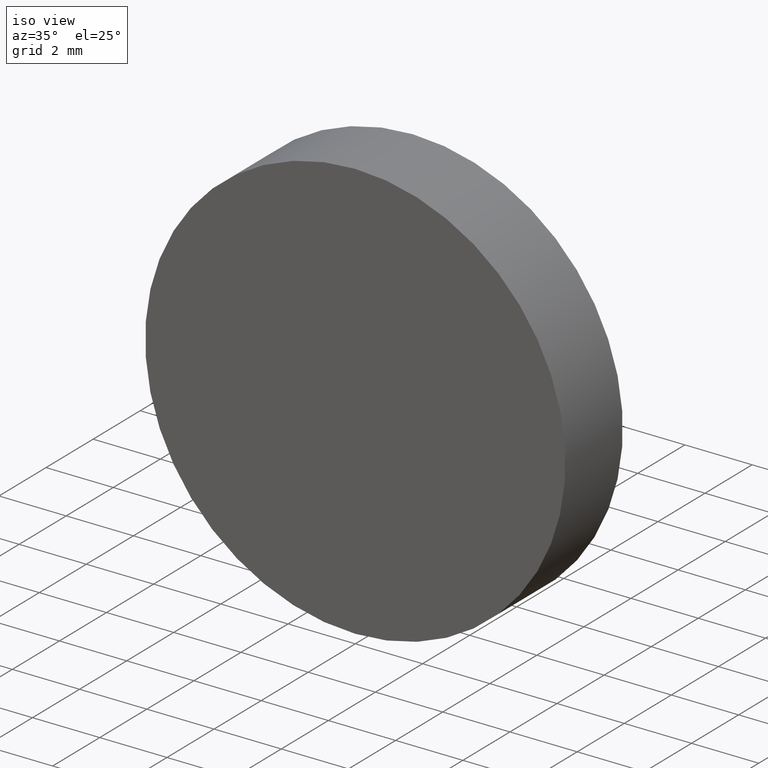
[diagram: clean part render]
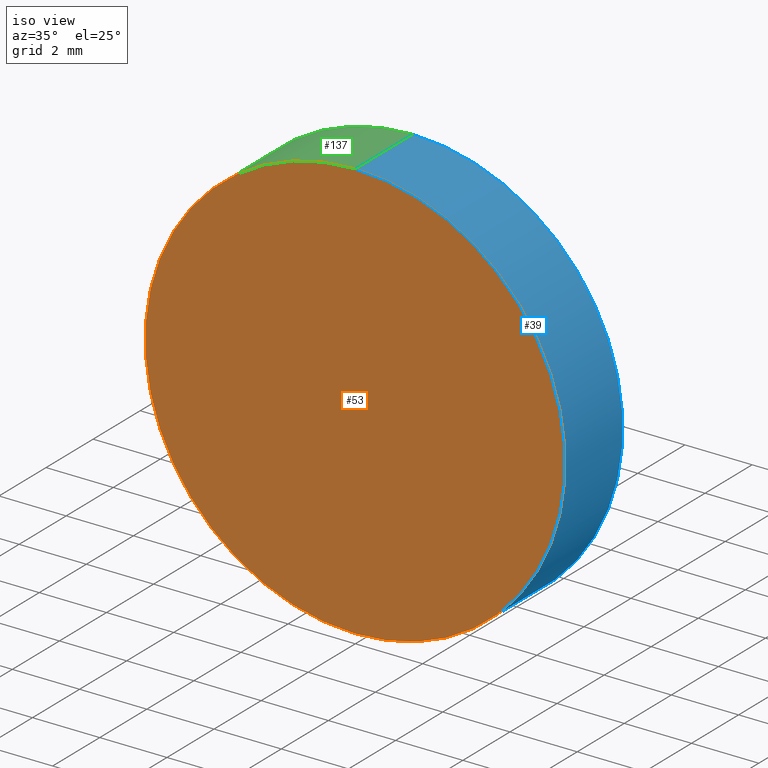
[diagram: same view with three faces highlighted in distinct colors, each labeled with its STEP entity id]
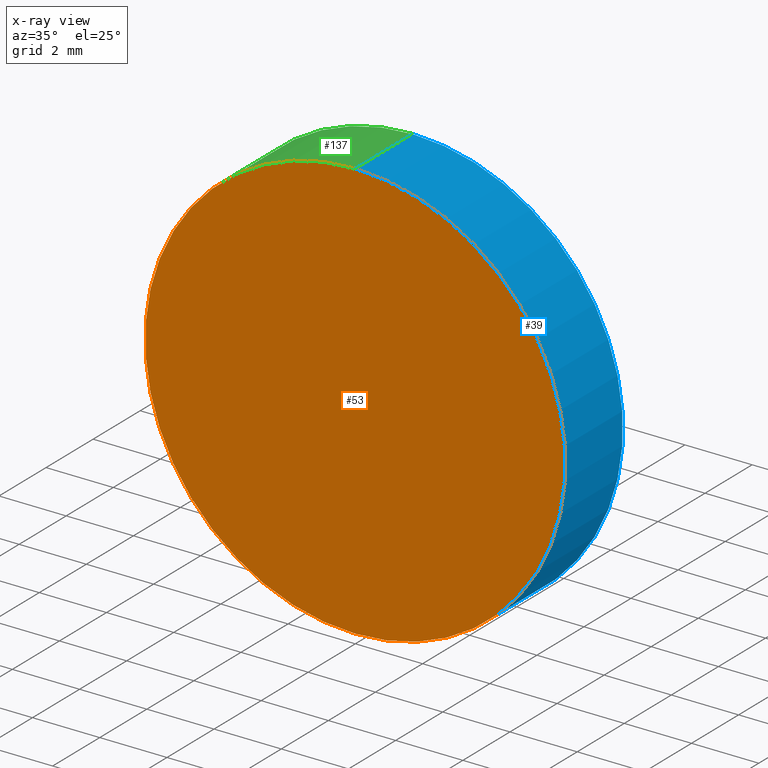
[diagram: x-ray of the same camera — body ghosted, the three highlighted faces saturated]
A machine part, iso view with three faces highlighted in distinct colors.
The next image is the same camera in x-ray (body ghosted, the three faces saturated) — at least one of them is partly hidden behind the body in this view.
Their STEP definitions:

[orange] entity #53 — the highlighted planar face has unit normal (0, 1, 0).
#1 = AXIS2_PLACEMENT_3D ( 'NONE', #79, #12, #80 ) ;
#6 = DIRECTION ( 'NONE',  ( 0.0000000000000000000, 1.000000000000000000, 0.0000000000000000000 ) ) ;
#11 = EDGE_CURVE ( 'NONE', #64, #68, #130, .T. ) ;
#12 = DIRECTION ( 'NONE',  ( 0.0000000000000000000, 1.000000000000000000, 0.0000000000000000000 ) ) ;
#22 = EDGE_CURVE ( 'NONE', #68, #64, #120, .T. ) ;
#26 = DIRECTION ( 'NONE',  ( 0.0000000000000000000, 1.000000000000000000, 0.0000000000000000000 ) ) ;
#32 = AXIS2_PLACEMENT_3D ( 'NONE', #58, #6, #111 ) ;
#35 = FACE_OUTER_BOUND ( 'NONE', #57, .T. ) ;
#53 = ADVANCED_FACE ( 'NONE', ( #35 ), #82, .F. ) ;
#57 = EDGE_LOOP ( 'NONE', ( #89, #107 ) ) ;
#58 = CARTESIAN_POINT ( 'NONE',  ( 0.0000000000000000000, 0.0000000000000000000, 0.0000000000000000000 ) ) ;
#61 = AXIS2_PLACEMENT_3D ( 'NONE', #122, #26, #95 ) ;
#64 = VERTEX_POINT ( 'NONE', #133 ) ;
#68 = VERTEX_POINT ( 'NONE', #114 ) ;
#79 = CARTESIAN_POINT ( 'NONE',  ( 0.0000000000000000000, 0.0000000000000000000, 0.0000000000000000000 ) ) ;
#80 = DIRECTION ( 'NONE',  ( 0.0000000000000000000, 0.0000000000000000000, 1.000000000000000000 ) ) ;
#82 = PLANE ( 'NONE',  #61 ) ;
#89 = ORIENTED_EDGE ( 'NONE', *, *, #11, .F. ) ;
#95 = DIRECTION ( 'NONE',  ( 0.0000000000000000000, -0.0000000000000000000, 1.000000000000000000 ) ) ;
#107 = ORIENTED_EDGE ( 'NONE', *, *, #22, .F. ) ;
#111 = DIRECTION ( 'NONE',  ( 0.0000000000000000000, 0.0000000000000000000, 1.000000000000000000 ) ) ;
#114 = CARTESIAN_POINT ( 'NONE',  ( 7.654042494670957600E-016, 0.0000000000000000000, 6.250000000000000000 ) ) ;
#120 = CIRCLE ( 'NONE', #32, 6.250000000000000000 ) ;
#122 = CARTESIAN_POINT ( 'NONE',  ( 0.0000000000000000000, 0.0000000000000000000, 0.0000000000000000000 ) ) ;
#130 = CIRCLE ( 'NONE', #1, 6.250000000000000000 ) ;
#133 = CARTESIAN_POINT ( 'NONE',  ( 0.0000000000000000000, 0.0000000000000000000, -6.250000000000000000 ) ) ;

[blue] entity #39 — the highlighted cylindrical surface (partial cylindrical patch) has radius 6.25 mm, axis along (-0, -1, -0).
#4 = CARTESIAN_POINT ( 'NONE',  ( 7.654042494670957600E-016, 2.439999999999999900, 6.250000000000000000 ) ) ;
#6 = DIRECTION ( 'NONE',  ( 0.0000000000000000000, 1.000000000000000000, 0.0000000000000000000 ) ) ;
#8 = VERTEX_POINT ( 'NONE', #75 ) ;
#14 = ORIENTED_EDGE ( 'NONE', *, *, #47, .F. ) ;
#16 = DIRECTION ( 'NONE',  ( -0.0000000000000000000, -1.000000000000000000, -0.0000000000000000000 ) ) ;
#18 = EDGE_LOOP ( 'NONE', ( #14, #112, #124, #93 ) ) ;
#22 = EDGE_CURVE ( 'NONE', #68, #64, #120, .T. ) ;
#29 = VECTOR ( 'NONE', #135, 1000.000000000000000 ) ;
#30 = EDGE_CURVE ( 'NONE', #102, #64, #83, .T. ) ;
#32 = AXIS2_PLACEMENT_3D ( 'NONE', #58, #6, #111 ) ;
#37 = DIRECTION ( 'NONE',  ( 0.0000000000000000000, 1.000000000000000000, 0.0000000000000000000 ) ) ;
#39 = ADVANCED_FACE ( 'NONE', ( #62 ), #138, .T. ) ;
#40 = AXIS2_PLACEMENT_3D ( 'NONE', #43, #16, #123 ) ;
#43 = CARTESIAN_POINT ( 'NONE',  ( 0.0000000000000000000, 2.439999999999999900, 0.0000000000000000000 ) ) ;
#45 = CIRCLE ( 'NONE', #71, 6.250000000000000000 ) ;
#47 = EDGE_CURVE ( 'NONE', #8, #102, #45, .T. ) ;
#48 = CARTESIAN_POINT ( 'NONE',  ( 0.0000000000000000000, 2.439999999999999900, 0.0000000000000000000 ) ) ;
#50 = CARTESIAN_POINT ( 'NONE',  ( 0.0000000000000000000, 2.439999999999999900, -6.250000000000000000 ) ) ;
#58 = CARTESIAN_POINT ( 'NONE',  ( 0.0000000000000000000, 0.0000000000000000000, 0.0000000000000000000 ) ) ;
#62 = FACE_OUTER_BOUND ( 'NONE', #18, .T. ) ;
#64 = VERTEX_POINT ( 'NONE', #133 ) ;
#65 = EDGE_CURVE ( 'NONE', #8, #68, #91, .T. ) ;
#68 = VERTEX_POINT ( 'NONE', #114 ) ;
#71 = AXIS2_PLACEMENT_3D ( 'NONE', #48, #37, #103 ) ;
#72 = DIRECTION ( 'NONE',  ( -0.0000000000000000000, -1.000000000000000000, -0.0000000000000000000 ) ) ;
#74 = CARTESIAN_POINT ( 'NONE',  ( 0.0000000000000000000, 2.439999999999999900, -6.250000000000000000 ) ) ;
#75 = CARTESIAN_POINT ( 'NONE',  ( 7.654042494670957600E-016, 2.439999999999999900, 6.250000000000000000 ) ) ;
#78 = VECTOR ( 'NONE', #72, 1000.000000000000000 ) ;
#83 = LINE ( 'NONE', #50, #29 ) ;
#91 = LINE ( 'NONE', #4, #78 ) ;
#93 = ORIENTED_EDGE ( 'NONE', *, *, #30, .F. ) ;
#102 = VERTEX_POINT ( 'NONE', #74 ) ;
#103 = DIRECTION ( 'NONE',  ( 0.0000000000000000000, 0.0000000000000000000, 1.000000000000000000 ) ) ;
#111 = DIRECTION ( 'NONE',  ( 0.0000000000000000000, 0.0000000000000000000, 1.000000000000000000 ) ) ;
#112 = ORIENTED_EDGE ( 'NONE', *, *, #65, .T. ) ;
#114 = CARTESIAN_POINT ( 'NONE',  ( 7.654042494670957600E-016, 0.0000000000000000000, 6.250000000000000000 ) ) ;
#120 = CIRCLE ( 'NONE', #32, 6.250000000000000000 ) ;
#123 = DIRECTION ( 'NONE',  ( 0.0000000000000000000, 0.0000000000000000000, -1.000000000000000000 ) ) ;
#124 = ORIENTED_EDGE ( 'NONE', *, *, #22, .T. ) ;
#133 = CARTESIAN_POINT ( 'NONE',  ( 0.0000000000000000000, 0.0000000000000000000, -6.250000000000000000 ) ) ;
#135 = DIRECTION ( 'NONE',  ( -0.0000000000000000000, -1.000000000000000000, -0.0000000000000000000 ) ) ;
#138 = CYLINDRICAL_SURFACE ( 'NONE', #40, 6.250000000000000000 ) ;

[green] entity #137 — the highlighted cylindrical surface (partial cylindrical patch) has radius 6.25 mm, axis along (-0, -1, -0).
#1 = AXIS2_PLACEMENT_3D ( 'NONE', #79, #12, #80 ) ;
#2 = ORIENTED_EDGE ( 'NONE', *, *, #27, .F. ) ;
#4 = CARTESIAN_POINT ( 'NONE',  ( 7.654042494670957600E-016, 2.439999999999999900, 6.250000000000000000 ) ) ;
#8 = VERTEX_POINT ( 'NONE', #75 ) ;
#10 = CARTESIAN_POINT ( 'NONE',  ( 0.0000000000000000000, 2.439999999999999900, 0.0000000000000000000 ) ) ;
#11 = EDGE_CURVE ( 'NONE', #64, #68, #130, .T. ) ;
#12 = DIRECTION ( 'NONE',  ( 0.0000000000000000000, 1.000000000000000000, 0.0000000000000000000 ) ) ;
#20 = DIRECTION ( 'NONE',  ( 0.0000000000000000000, 0.0000000000000000000, -1.000000000000000000 ) ) ;
#23 = FACE_OUTER_BOUND ( 'NONE', #94, .T. ) ;
#27 = EDGE_CURVE ( 'NONE', #102, #8, #46, .T. ) ;
#29 = VECTOR ( 'NONE', #135, 1000.000000000000000 ) ;
#30 = EDGE_CURVE ( 'NONE', #102, #64, #83, .T. ) ;
#33 = ORIENTED_EDGE ( 'NONE', *, *, #65, .F. ) ;
#38 = DIRECTION ( 'NONE',  ( 0.0000000000000000000, 1.000000000000000000, 0.0000000000000000000 ) ) ;
#46 = CIRCLE ( 'NONE', #106, 6.250000000000000000 ) ;
#50 = CARTESIAN_POINT ( 'NONE',  ( 0.0000000000000000000, 2.439999999999999900, -6.250000000000000000 ) ) ;
#64 = VERTEX_POINT ( 'NONE', #133 ) ;
#65 = EDGE_CURVE ( 'NONE', #8, #68, #91, .T. ) ;
#68 = VERTEX_POINT ( 'NONE', #114 ) ;
#72 = DIRECTION ( 'NONE',  ( -0.0000000000000000000, -1.000000000000000000, -0.0000000000000000000 ) ) ;
#73 = ORIENTED_EDGE ( 'NONE', *, *, #30, .T. ) ;
#74 = CARTESIAN_POINT ( 'NONE',  ( 0.0000000000000000000, 2.439999999999999900, -6.250000000000000000 ) ) ;
#75 = CARTESIAN_POINT ( 'NONE',  ( 7.654042494670957600E-016, 2.439999999999999900, 6.250000000000000000 ) ) ;
#78 = VECTOR ( 'NONE', #72, 1000.000000000000000 ) ;
#79 = CARTESIAN_POINT ( 'NONE',  ( 0.0000000000000000000, 0.0000000000000000000, 0.0000000000000000000 ) ) ;
#80 = DIRECTION ( 'NONE',  ( 0.0000000000000000000, 0.0000000000000000000, 1.000000000000000000 ) ) ;
#83 = LINE ( 'NONE', #50, #29 ) ;
#90 = DIRECTION ( 'NONE',  ( -0.0000000000000000000, -1.000000000000000000, -0.0000000000000000000 ) ) ;
#91 = LINE ( 'NONE', #4, #78 ) ;
#94 = EDGE_LOOP ( 'NONE', ( #33, #2, #73, #110 ) ) ;
#102 = VERTEX_POINT ( 'NONE', #74 ) ;
#104 = DIRECTION ( 'NONE',  ( 0.0000000000000000000, 0.0000000000000000000, 1.000000000000000000 ) ) ;
#106 = AXIS2_PLACEMENT_3D ( 'NONE', #113, #38, #104 ) ;
#110 = ORIENTED_EDGE ( 'NONE', *, *, #11, .T. ) ;
#113 = CARTESIAN_POINT ( 'NONE',  ( 0.0000000000000000000, 2.439999999999999900, 0.0000000000000000000 ) ) ;
#114 = CARTESIAN_POINT ( 'NONE',  ( 7.654042494670957600E-016, 0.0000000000000000000, 6.250000000000000000 ) ) ;
#119 = CYLINDRICAL_SURFACE ( 'NONE', #132, 6.250000000000000000 ) ;
#130 = CIRCLE ( 'NONE', #1, 6.250000000000000000 ) ;
#132 = AXIS2_PLACEMENT_3D ( 'NONE', #10, #90, #20 ) ;
#133 = CARTESIAN_POINT ( 'NONE',  ( 0.0000000000000000000, 0.0000000000000000000, -6.250000000000000000 ) ) ;
#135 = DIRECTION ( 'NONE',  ( -0.0000000000000000000, -1.000000000000000000, -0.0000000000000000000 ) ) ;
#137 = ADVANCED_FACE ( 'NONE', ( #23 ), #119, .T. ) ;